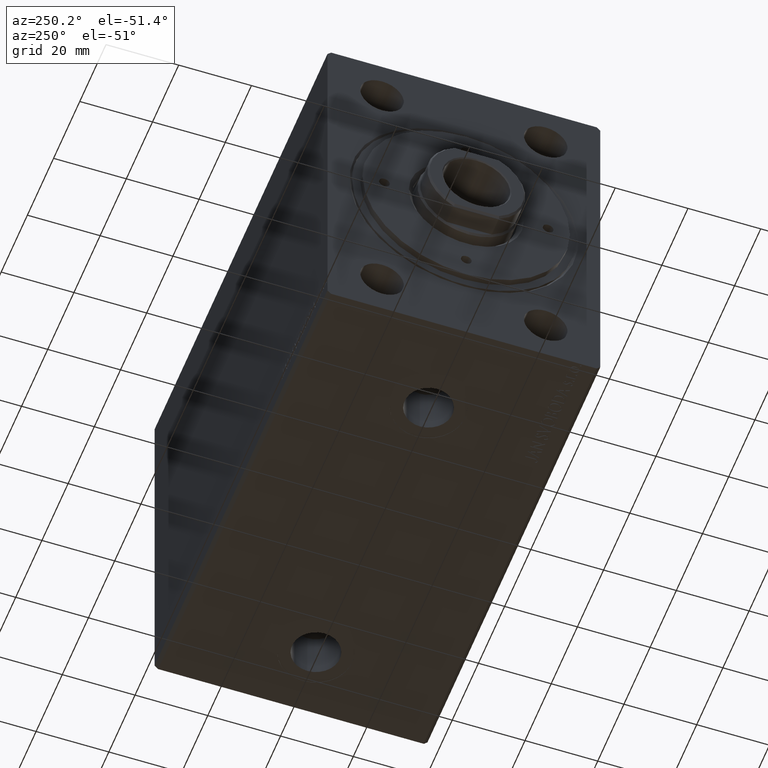
[diagram: clean part render]
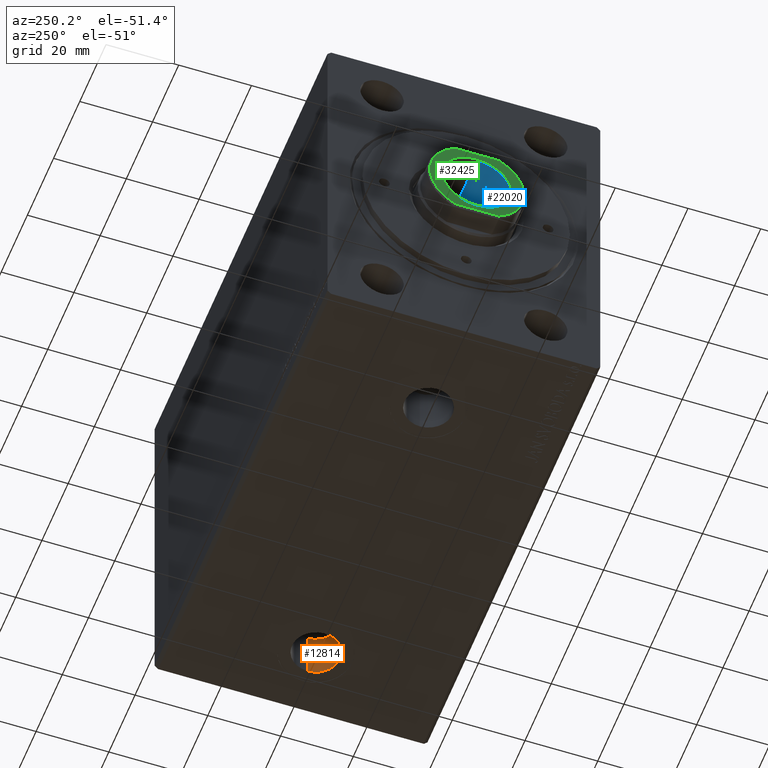
[diagram: same view with three faces highlighted in distinct colors, each labeled with its STEP entity id]
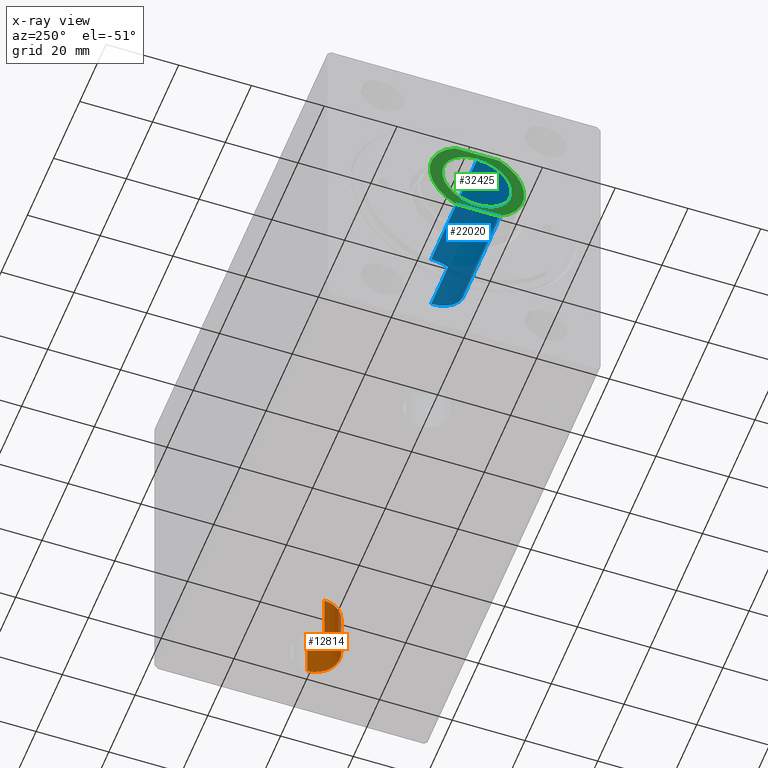
[diagram: x-ray of the same camera — body ghosted, the three highlighted faces saturated]
A machine part, auxiliary view with three faces highlighted in distinct colors.
The next image is the same camera in x-ray (body ghosted, the three faces saturated) — at least one of them is partly hidden behind the body in this view.
Their STEP definitions:

[orange] entity #12814 — the highlighted cylindrical surface (edge-blend (fillet) strip) has radius 6.58 mm, axis along (-0, -0, -1).
#1201 = EDGE_CURVE ( 'NONE', #19944, #30889, #38509, .T. ) ;
#2166 = CARTESIAN_POINT ( 'NONE',  ( 119.5800000000000125, -1.257501730170610208E-14, -36.29999999999999716 ) ) ;
#3056 = FACE_OUTER_BOUND ( 'NONE', #21720, .T. ) ;
#3500 = DIRECTION ( 'NONE',  ( -1.000000000000000000, 0.000000000000000000, 0.000000000000000000 ) ) ;
#3923 = EDGE_CURVE ( 'NONE', #30889, #20468, #6311, .T. ) ;
#4355 = CARTESIAN_POINT ( 'NONE',  ( 106.4200000000000017, -1.338083489554506112E-14, -36.29999999999999716 ) ) ;
#6311 = CIRCLE ( 'NONE', #37581, 6.580000000000002736 ) ;
#6834 = EDGE_CURVE ( 'NONE', #19944, #38798, #10672, .T. ) ;
#8987 = CARTESIAN_POINT ( 'NONE',  ( 106.4200000000000017, -1.338083489554506112E-14, -49.89999999999999858 ) ) ;
#10672 = CIRCLE ( 'NONE', #20597, 6.580000000000002736 ) ;
#12657 = VECTOR ( 'NONE', #29306, 1000.000000000000000 ) ;
#12814 = ADVANCED_FACE ( 'NONE', ( #3056 ), #40198, .F. ) ;
#13676 = VECTOR ( 'NONE', #31417, 1000.000000000000000 ) ;
#14796 = ORIENTED_EDGE ( 'NONE', *, *, #1201, .T. ) ;
#19944 = VERTEX_POINT ( 'NONE', #31154 ) ;
#20468 = VERTEX_POINT ( 'NONE', #8987 ) ;
#20597 = AXIS2_PLACEMENT_3D ( 'NONE', #38111, #40576, #27450 ) ;
#21720 = EDGE_LOOP ( 'NONE', ( #42355, #14796, #27791, #31061 ) ) ;
#21722 = DIRECTION ( 'NONE',  ( 0.000000000000000000, 0.000000000000000000, -1.000000000000000000 ) ) ;
#24523 = CARTESIAN_POINT ( 'NONE',  ( 106.4200000000000017, -1.338083489554506112E-14, -36.29999999999999716 ) ) ;
#25532 = AXIS2_PLACEMENT_3D ( 'NONE', #37514, #33304, #3500 ) ;
#26755 = EDGE_CURVE ( 'NONE', #38798, #20468, #30543, .T. ) ;
#27450 = DIRECTION ( 'NONE',  ( -1.000000000000000000, 0.000000000000000000, 0.000000000000000000 ) ) ;
#27791 = ORIENTED_EDGE ( 'NONE', *, *, #3923, .T. ) ;
#29306 = DIRECTION ( 'NONE',  ( -0.000000000000000000, -0.000000000000000000, -1.000000000000000000 ) ) ;
#30543 = LINE ( 'NONE', #24523, #13676 ) ;
#30889 = VERTEX_POINT ( 'NONE', #32810 ) ;
#31061 = ORIENTED_EDGE ( 'NONE', *, *, #26755, .F. ) ;
#31154 = CARTESIAN_POINT ( 'NONE',  ( 119.5800000000000125, -1.257501730170610208E-14, -36.29999999999999716 ) ) ;
#31417 = DIRECTION ( 'NONE',  ( -0.000000000000000000, -0.000000000000000000, -1.000000000000000000 ) ) ;
#32810 = CARTESIAN_POINT ( 'NONE',  ( 119.5800000000000125, -1.257501730170610208E-14, -49.89999999999999858 ) ) ;
#33304 = DIRECTION ( 'NONE',  ( -0.000000000000000000, -0.000000000000000000, -1.000000000000000000 ) ) ;
#35295 = DIRECTION ( 'NONE',  ( -1.000000000000000000, 0.000000000000000000, 0.000000000000000000 ) ) ;
#37514 = CARTESIAN_POINT ( 'NONE',  ( 113.0000000000000000, -1.338083489554506112E-14, -36.29999999999999716 ) ) ;
#37581 = AXIS2_PLACEMENT_3D ( 'NONE', #41979, #21722, #35295 ) ;
#38111 = CARTESIAN_POINT ( 'NONE',  ( 113.0000000000000000, -1.338083489554506112E-14, -36.29999999999999716 ) ) ;
#38509 = LINE ( 'NONE', #2166, #12657 ) ;
#38798 = VERTEX_POINT ( 'NONE', #4355 ) ;
#40198 = CYLINDRICAL_SURFACE ( 'NONE', #25532, 6.580000000000002736 ) ;
#40576 = DIRECTION ( 'NONE',  ( 0.000000000000000000, 0.000000000000000000, -1.000000000000000000 ) ) ;
#41979 = CARTESIAN_POINT ( 'NONE',  ( 113.0000000000000000, -1.338083489554506112E-14, -49.89999999999999858 ) ) ;
#42355 = ORIENTED_EDGE ( 'NONE', *, *, #6834, .F. ) ;

[blue] entity #22020 — the highlighted cylindrical surface (edge-blend (fillet) strip) has radius 9.25 mm, axis along (-1, 0, 0).
#77 = AXIS2_PLACEMENT_3D ( 'NONE', #24222, #34014, #3763 ) ;
#639 = CYLINDRICAL_SURFACE ( 'NONE', #77, 9.249999999999996447 ) ;
#3763 = DIRECTION ( 'NONE',  ( 1.000000000000000000, 0.000000000000000000, 0.000000000000000000 ) ) ;
#4032 = EDGE_CURVE ( 'NONE', #27115, #18091, #43064, .T. ) ;
#5023 = CIRCLE ( 'NONE', #10725, 9.249999999999996447 ) ;
#6523 = CARTESIAN_POINT ( 'NONE',  ( 9.249999999999994671, 0.000000000000000000, 89.20000000000000284 ) ) ;
#6872 = DIRECTION ( 'NONE',  ( 1.000000000000000000, 0.000000000000000000, 0.000000000000000000 ) ) ;
#8908 = DIRECTION ( 'NONE',  ( -0.000000000000000000, -0.000000000000000000, 1.000000000000000000 ) ) ;
#9998 = DIRECTION ( 'NONE',  ( 0.000000000000000000, 0.000000000000000000, 1.000000000000000000 ) ) ;
#10381 = DIRECTION ( 'NONE',  ( -0.000000000000000000, -0.000000000000000000, 1.000000000000000000 ) ) ;
#10655 = FACE_OUTER_BOUND ( 'NONE', #34712, .T. ) ;
#10725 = AXIS2_PLACEMENT_3D ( 'NONE', #17095, #9998, #6872 ) ;
#10821 = CARTESIAN_POINT ( 'NONE',  ( 0.000000000000000000, 0.000000000000000000, 89.20000000000000284 ) ) ;
#11151 = CARTESIAN_POINT ( 'NONE',  ( -9.249999999999996447, 1.132798289211301304E-15, 123.8999999999999773 ) ) ;
#14495 = AXIS2_PLACEMENT_3D ( 'NONE', #10821, #10381, #30626 ) ;
#15281 = VERTEX_POINT ( 'NONE', #15748 ) ;
#15748 = CARTESIAN_POINT ( 'NONE',  ( 9.249999999999996447, 0.000000000000000000, 123.8999999999999773 ) ) ;
#17095 = CARTESIAN_POINT ( 'NONE',  ( 0.000000000000000000, 0.000000000000000000, 123.8999999999999773 ) ) ;
#18091 = VERTEX_POINT ( 'NONE', #11151 ) ;
#19080 = VECTOR ( 'NONE', #43517, 1000.000000000000000 ) ;
#19788 = CARTESIAN_POINT ( 'NONE',  ( 9.249999999999996447, 0.000000000000000000, 124.2000000000000028 ) ) ;
#21333 = EDGE_CURVE ( 'NONE', #18091, #15281, #5023, .T. ) ;
#22020 = ADVANCED_FACE ( 'NONE', ( #10655 ), #639, .F. ) ;
#22457 = LINE ( 'NONE', #19788, #32958 ) ;
#24222 = CARTESIAN_POINT ( 'NONE',  ( 0.000000000000000000, 0.000000000000000000, 124.2000000000000028 ) ) ;
#25943 = CARTESIAN_POINT ( 'NONE',  ( -9.249999999999996447, 1.132798289211301304E-15, 124.2000000000000028 ) ) ;
#26558 = ORIENTED_EDGE ( 'NONE', *, *, #29828, .F. ) ;
#26569 = ORIENTED_EDGE ( 'NONE', *, *, #21333, .T. ) ;
#26672 = VERTEX_POINT ( 'NONE', #6523 ) ;
#27115 = VERTEX_POINT ( 'NONE', #29543 ) ;
#29120 = ORIENTED_EDGE ( 'NONE', *, *, #31448, .F. ) ;
#29543 = CARTESIAN_POINT ( 'NONE',  ( -9.249999999999994671, 1.132798289211300909E-15, 89.20000000000000284 ) ) ;
#29828 = EDGE_CURVE ( 'NONE', #27115, #26672, #30819, .T. ) ;
#30626 = DIRECTION ( 'NONE',  ( 1.000000000000000000, 0.000000000000000000, 0.000000000000000000 ) ) ;
#30819 = CIRCLE ( 'NONE', #14495, 9.249999999999994671 ) ;
#31448 = EDGE_CURVE ( 'NONE', #26672, #15281, #22457, .T. ) ;
#32958 = VECTOR ( 'NONE', #8908, 1000.000000000000000 ) ;
#34014 = DIRECTION ( 'NONE',  ( -0.000000000000000000, -0.000000000000000000, 1.000000000000000000 ) ) ;
#34712 = EDGE_LOOP ( 'NONE', ( #26558, #35325, #26569, #29120 ) ) ;
#35325 = ORIENTED_EDGE ( 'NONE', *, *, #4032, .T. ) ;
#43064 = LINE ( 'NONE', #25943, #19080 ) ;
#43517 = DIRECTION ( 'NONE',  ( -0.000000000000000000, -0.000000000000000000, 1.000000000000000000 ) ) ;

[green] entity #32425 — the highlighted planar face has unit normal (-1, 0, 0).
#206 = VERTEX_POINT ( 'NONE', #34822 ) ;
#1145 = EDGE_CURVE ( 'NONE', #41711, #206, #38072, .T. ) ;
#1674 = CIRCLE ( 'NONE', #22239, 9.550000000000030909 ) ;
#2504 = CARTESIAN_POINT ( 'NONE',  ( 9.550000000000030909, 0.000000000000000000, 124.2000000000000028 ) ) ;
#2845 = AXIS2_PLACEMENT_3D ( 'NONE', #30183, #6610, #3048 ) ;
#3048 = DIRECTION ( 'NONE',  ( 1.000000000000000000, 0.000000000000000000, 0.000000000000000000 ) ) ;
#3719 = EDGE_LOOP ( 'NONE', ( #32316, #33905 ) ) ;
#4604 = CARTESIAN_POINT ( 'NONE',  ( 11.50000000000000000, 6.062177826491094379, 124.2000000000000028 ) ) ;
#5285 = CARTESIAN_POINT ( 'NONE',  ( 0.000000000000000000, 0.000000000000000000, 124.2000000000000028 ) ) ;
#5296 = AXIS2_PLACEMENT_3D ( 'NONE', #7641, #10536, #7204 ) ;
#6434 = EDGE_CURVE ( 'NONE', #27326, #41711, #39056, .T. ) ;
#6610 = DIRECTION ( 'NONE',  ( 0.000000000000000000, 0.000000000000000000, 1.000000000000000000 ) ) ;
#7023 = CARTESIAN_POINT ( 'NONE',  ( 11.50000000000000000, 6.184658438426516192, 124.2000000000000028 ) ) ;
#7204 = DIRECTION ( 'NONE',  ( 1.000000000000000000, 0.000000000000000000, -0.000000000000000000 ) ) ;
#7619 = CARTESIAN_POINT ( 'NONE',  ( -11.50000000000000000, -6.184658438426516192, 124.2000000000000028 ) ) ;
#7641 = CARTESIAN_POINT ( 'NONE',  ( 0.000000000000000000, 0.000000000000000000, 124.2000000000000028 ) ) ;
#10536 = DIRECTION ( 'NONE',  ( 0.000000000000000000, 0.000000000000000000, 1.000000000000000000 ) ) ;
#11344 = CIRCLE ( 'NONE', #20581, 9.550000000000030909 ) ;
#16246 = ORIENTED_EDGE ( 'NONE', *, *, #1145, .T. ) ;
#16660 = CARTESIAN_POINT ( 'NONE',  ( -9.550000000000030909, 1.169537693185726108E-15, 124.2000000000000028 ) ) ;
#16982 = FACE_BOUND ( 'NONE', #3719, .T. ) ;
#18602 = EDGE_CURVE ( 'NONE', #34782, #38353, #11344, .T. ) ;
#20395 = DIRECTION ( 'NONE',  ( 1.000000000000000000, 0.000000000000000000, 0.000000000000000000 ) ) ;
#20537 = PLANE ( 'NONE',  #5296 ) ;
#20580 = CARTESIAN_POINT ( 'NONE',  ( -11.50000000000000000, 6.062177826491097044, 124.2000000000000028 ) ) ;
#20581 = AXIS2_PLACEMENT_3D ( 'NONE', #34414, #23522, #20395 ) ;
#20589 = DIRECTION ( 'NONE',  ( 0.000000000000000000, 1.000000000000000000, 0.000000000000000000 ) ) ;
#21881 = VECTOR ( 'NONE', #26975, 1000.000000000000000 ) ;
#21896 = VERTEX_POINT ( 'NONE', #29343 ) ;
#22239 = AXIS2_PLACEMENT_3D ( 'NONE', #27725, #41730, #42163 ) ;
#22399 = DIRECTION ( 'NONE',  ( 1.000000000000000000, 0.000000000000000000, 0.000000000000000000 ) ) ;
#23522 = DIRECTION ( 'NONE',  ( -0.000000000000000000, -0.000000000000000000, -1.000000000000000000 ) ) ;
#26975 = DIRECTION ( 'NONE',  ( 0.000000000000000000, -1.000000000000000000, 0.000000000000000000 ) ) ;
#27326 = VERTEX_POINT ( 'NONE', #4604 ) ;
#27349 = VECTOR ( 'NONE', #20589, 1000.000000000000000 ) ;
#27725 = CARTESIAN_POINT ( 'NONE',  ( 0.000000000000000000, 0.000000000000000000, 124.2000000000000028 ) ) ;
#29343 = CARTESIAN_POINT ( 'NONE',  ( 11.50000000000000000, -6.062177826491093491, 124.2000000000000028 ) ) ;
#30104 = CIRCLE ( 'NONE', #43607, 13.00000000000001066 ) ;
#30183 = CARTESIAN_POINT ( 'NONE',  ( 0.000000000000000000, 0.000000000000000000, 124.2000000000000028 ) ) ;
#30279 = ORIENTED_EDGE ( 'NONE', *, *, #37758, .T. ) ;
#32316 = ORIENTED_EDGE ( 'NONE', *, *, #18602, .T. ) ;
#32425 = ADVANCED_FACE ( 'NONE', ( #40559, #16982 ), #20537, .T. ) ;
#33905 = ORIENTED_EDGE ( 'NONE', *, *, #34205, .T. ) ;
#34010 = EDGE_CURVE ( 'NONE', #206, #21896, #30104, .T. ) ;
#34205 = EDGE_CURVE ( 'NONE', #38353, #34782, #1674, .T. ) ;
#34414 = CARTESIAN_POINT ( 'NONE',  ( 0.000000000000000000, 0.000000000000000000, 124.2000000000000028 ) ) ;
#34782 = VERTEX_POINT ( 'NONE', #2504 ) ;
#34822 = CARTESIAN_POINT ( 'NONE',  ( -11.50000000000000000, -6.062177826491093491, 124.2000000000000028 ) ) ;
#35155 = EDGE_LOOP ( 'NONE', ( #16246, #43428, #30279, #44018 ) ) ;
#37490 = LINE ( 'NONE', #7023, #27349 ) ;
#37758 = EDGE_CURVE ( 'NONE', #21896, #27326, #37490, .T. ) ;
#38072 = LINE ( 'NONE', #7619, #21881 ) ;
#38353 = VERTEX_POINT ( 'NONE', #16660 ) ;
#39056 = CIRCLE ( 'NONE', #2845, 13.00000000000001066 ) ;
#40559 = FACE_OUTER_BOUND ( 'NONE', #35155, .T. ) ;
#41711 = VERTEX_POINT ( 'NONE', #20580 ) ;
#41730 = DIRECTION ( 'NONE',  ( -0.000000000000000000, -0.000000000000000000, -1.000000000000000000 ) ) ;
#42163 = DIRECTION ( 'NONE',  ( 1.000000000000000000, 0.000000000000000000, 0.000000000000000000 ) ) ;
#43312 = DIRECTION ( 'NONE',  ( 0.000000000000000000, 0.000000000000000000, 1.000000000000000000 ) ) ;
#43428 = ORIENTED_EDGE ( 'NONE', *, *, #34010, .T. ) ;
#43607 = AXIS2_PLACEMENT_3D ( 'NONE', #5285, #43312, #22399 ) ;
#44018 = ORIENTED_EDGE ( 'NONE', *, *, #6434, .T. ) ;